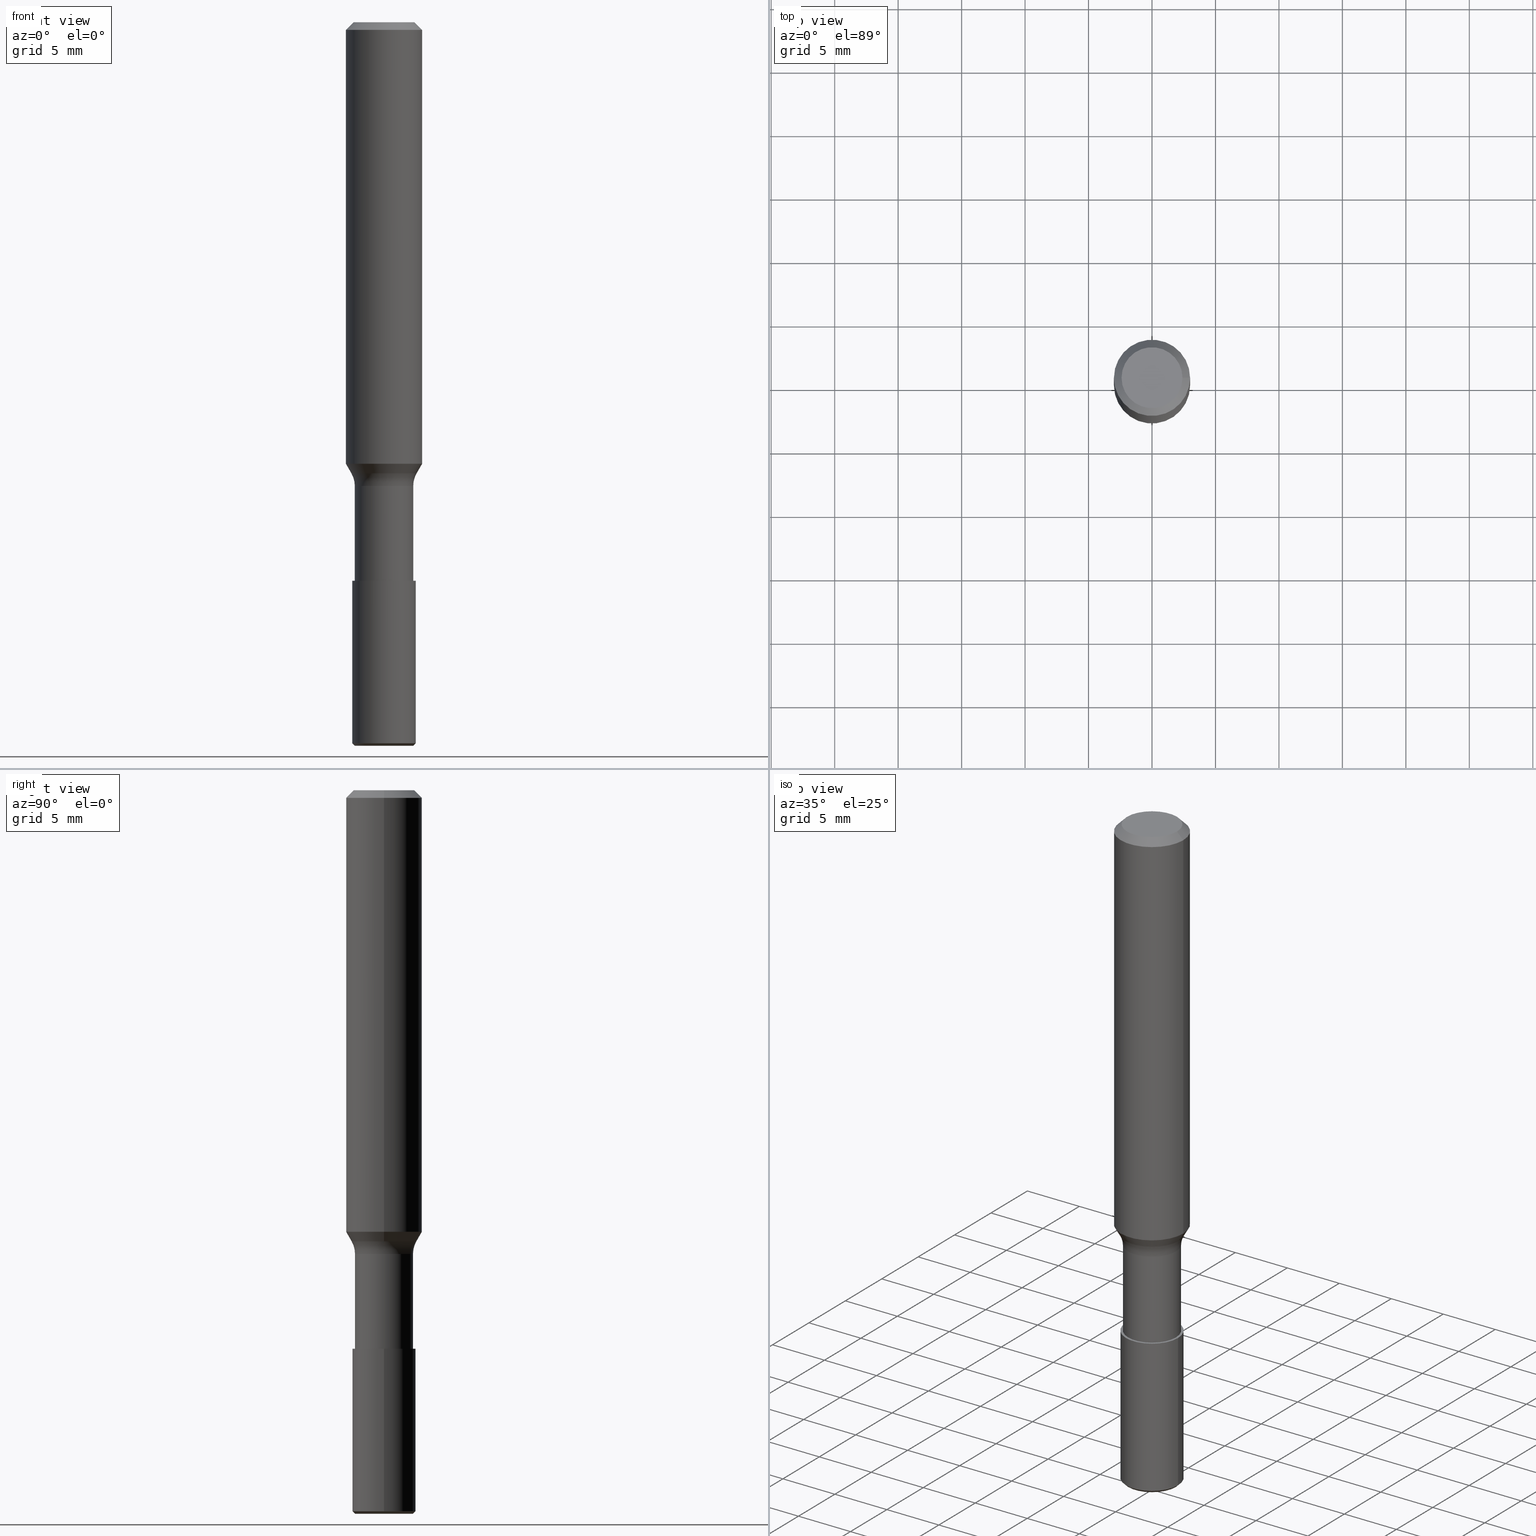
[diagram: canonical four-view strip — front | top / right | iso, engineering-drawing reading convention]
A machine part, canonical four-view strip (front | top / right | iso — engineering-drawing reading convention). The complete STEP part file that produces these views, byte-faithful:
ISO-10303-21;
HEADER;
FILE_DESCRIPTION (( 'STEP AP203' ),
    '1' );
FILE_NAME ('738.050.00.STEP',
    '2019-01-09T01:38:46',
    ( '' ),
    ( '' ),
    'SwSTEP 2.0',
    'SolidWorks 2019',
    '' );
FILE_SCHEMA (( 'CONFIG_CONTROL_DESIGN' ));
ENDSEC;

DATA;
#1 = DIRECTION ( 'NONE',  ( 6.982962677686266711E-15, 0.0000000000000000000, 1.000000000000000000 ) ) ;
#2 = EDGE_LOOP ( 'NONE', ( #88 ) ) ;
#3 = DIRECTION ( 'NONE',  ( 6.982962677686266711E-15, 0.0000000000000000000, 1.000000000000000000 ) ) ;
#4 = ORIENTED_EDGE ( 'NONE', *, *, #45, .T. ) ;
#5 = EDGE_LOOP ( 'NONE', ( #222 ) ) ;
#6 = DIRECTION ( 'NONE',  ( 0.0000000000000000000, 0.0000000000000000000, 1.000000000000000000 ) ) ;
#7 = DIRECTION ( 'NONE',  ( 6.982962677686266711E-15, 0.0000000000000000000, 1.000000000000000000 ) ) ;
#8 = ORIENTED_EDGE ( 'NONE', *, *, #212, .T. ) ;
#9 = FACE_OUTER_BOUND ( 'NONE', #209, .T. ) ;
#10 = CIRCLE ( 'NONE', #213, 2.500000000000015987 ) ;
#11 = ADVANCED_FACE ( 'NONE', ( #137 ), #39, .F. ) ;
#12 = DATE_AND_TIME ( #128, #15 ) ;
#13 = CALENDAR_DATE ( 2019, 9, 1 ) ;
#14 = DIRECTION ( 'NONE',  ( -8.961959400175080870E-15, 0.0000000000000000000, -1.000000000000000000 ) ) ;
#15 = LOCAL_TIME ( 2, 38, 46.00000000000000000, #149 ) ;
#16 = VERTEX_POINT ( 'NONE', #64 ) ;
#17 = APPROVAL_DATE_TIME ( #61, #254 ) ;
#18 = FACE_BOUND ( 'NONE', #110, .T. ) ;
#19 = ORIENTED_EDGE ( 'NONE', *, *, #212, .F. ) ;
#20 = CALENDAR_DATE ( 2019, 9, 1 ) ;
#21 = FACE_OUTER_BOUND ( 'NONE', #224, .T. ) ;
#22 = CIRCLE ( 'NONE', #56, 2.299999999999999822 ) ;
#23 = FACE_OUTER_BOUND ( 'NONE', #46, .T. ) ;
#24 = COORDINATED_UNIVERSAL_TIME_OFFSET ( 1, 0, .AHEAD. ) ;
#25 = CC_DESIGN_PERSON_AND_ORGANIZATION_ASSIGNMENT ( #129, #103, ( #226 ) ) ;
#26 = DIRECTION ( 'NONE',  ( -1.000000000000000000, 0.0000000000000000000, 8.326672684688590434E-15 ) ) ;
#27 = CARTESIAN_POINT ( 'NONE',  ( 2.399999999999998135, 0.0000000000000000000, -1.675911042644702748E-14 ) ) ;
#28 = CARTESIAN_POINT ( 'NONE',  ( -3.072503578181957858E-13, 0.0000000000000000000, -44.00000000000000711 ) ) ;
#29 = CARTESIAN_POINT ( 'NONE',  ( -3.072503578181957353E-13, 0.0000000000000000000, -44.00000000000000000 ) ) ;
#30 = PERSON_AND_ORGANIZATION ( #219, #142 ) ;
#31 = EDGE_LOOP ( 'NONE', ( #264 ) ) ;
#32 = MECHANICAL_CONTEXT ( 'NONE', #189, 'mechanical' ) ;
#33 = DIRECTION ( 'NONE',  ( -1.000000000000000000, 0.0000000000000000000, 6.033820786006285717E-15 ) ) ;
#34 = PERSON_AND_ORGANIZATION_ROLE ( 'design_supplier' ) ;
#35 = LOCAL_TIME ( 2, 38, 46.00000000000000000, #145 ) ;
#36 = LOCAL_TIME ( 2, 38, 46.00000000000000000, #24 ) ;
#37 = CARTESIAN_POINT ( 'NONE',  ( -2.300000000000431033, 0.0000000000000000000, -56.99999999999996447 ) ) ;
#38 = PRODUCT_DEFINITION ( 'UNKNOWN', '', #169, #97 ) ;
#39 = PLANE ( 'NONE',  #53 ) ;
#40 = DIRECTION ( 'NONE',  ( -1.000000000000000000, 0.0000000000000000000, 6.982962677686267499E-15 ) ) ;
#41 = CC_DESIGN_SECURITY_CLASSIFICATION ( #237, ( #169 ) ) ;
#42 = APPROVAL_DATE_TIME ( #12, #283 ) ;
#43 = EDGE_LOOP ( 'NONE', ( #48 ) ) ;
#44 = PERSON_AND_ORGANIZATION_ROLE ( 'creator' ) ;
#45 = EDGE_CURVE ( 'NONE', #155, #155, #10, .T. ) ;
#46 = EDGE_LOOP ( 'NONE', ( #147 ) ) ;
#47 = VERTEX_POINT ( 'NONE', #117 ) ;
#48 = ORIENTED_EDGE ( 'NONE', *, *, #271, .F. ) ;
#49 = CC_DESIGN_DATE_AND_TIME_ASSIGNMENT ( #113, #203, ( #38 ) ) ;
#50 = PERSON_AND_ORGANIZATION ( #219, #142 ) ;
#51 = AXIS2_PLACEMENT_3D ( 'NONE', #29, #207, #177 ) ;
#52 = APPROVAL_ROLE ( '' ) ;
#53 = AXIS2_PLACEMENT_3D ( 'NONE', #111, #86, #255 ) ;
#54 = VERTEX_POINT ( 'NONE', #144 ) ;
#55 = ADVANCED_FACE ( 'NONE', ( #21 ), #206, .T. ) ;
#56 = AXIS2_PLACEMENT_3D ( 'NONE', #102, #188, #33 ) ;
#57 = ORIENTED_EDGE ( 'NONE', *, *, #197, .F. ) ;
#58 = CIRCLE ( 'NONE', #167, 2.567949192431125294 ) ;
#59 = FACE_OUTER_BOUND ( 'NONE', #2, .T. ) ;
#60 = CC_DESIGN_PERSON_AND_ORGANIZATION_ASSIGNMENT ( #185, #34, ( #169 ) ) ;
#61 = DATE_AND_TIME ( #120, #196 ) ;
#62 = CARTESIAN_POINT ( 'NONE',  ( -4.219140501844019865E-13, 0.0000000000000000000, -56.79999999999998295 ) ) ;
#63 = CONICAL_SURFACE ( 'NONE', #228, 2.300000000000007372, 0.7853981633974786991 ) ;
#64 = CARTESIAN_POINT ( 'NONE',  ( 2.999999999999995559, 0.0000000000000000000, -0.6000000000000241807 ) ) ;
#65 =( LENGTH_UNIT ( ) NAMED_UNIT ( * ) SI_UNIT ( .MILLI., .METRE. ) );
#66 = EDGE_CURVE ( 'NONE', #54, #54, #105, .T. ) ;
#67 = FACE_BOUND ( 'NONE', #68, .T. ) ;
#68 = EDGE_LOOP ( 'NONE', ( #19 ) ) ;
#69 = DIRECTION ( 'NONE',  ( -1.000000000000000000, 0.0000000000000000000, 6.982962677686266711E-15 ) ) ;
#70 = PLANE ( 'NONE',  #238 ) ;
#71 = ADVANCED_FACE ( 'NONE', ( #263, #9 ), #182, .T. ) ;
#72 = CARTESIAN_POINT ( 'NONE',  ( -3.278450613974943489E-13, 0.0000000000000000000, -44.00000000000000000 ) ) ;
#73 = EDGE_LOOP ( 'NONE', ( #160 ) ) ;
#74 = APPROVAL_STATUS ( 'not_yet_approved' ) ;
#75 = APPROVAL_PERSON_ORGANIZATION ( #81, #254, #52 ) ;
#76 = DATE_AND_TIME ( #78, #35 ) ;
#77 = DIRECTION ( 'NONE',  ( 1.000000000000000000, 0.0000000000000000000, -6.982962677686266711E-15 ) ) ;
#78 = CALENDAR_DATE ( 2019, 9, 1 ) ;
#79 = ADVANCED_FACE ( 'NONE', ( #260, #156 ), #162, .T. ) ;
#80 = DIRECTION ( 'NONE',  ( 1.000000000000000000, 0.0000000000000000000, 0.0000000000000000000 ) ) ;
#81 = PERSON_AND_ORGANIZATION ( #219, #142 ) ;
#82 = AXIS2_PLACEMENT_3D ( 'NONE', #100, #6, #80 ) ;
#83 = APPROVAL_PERSON_ORGANIZATION ( #281, #262, #261 ) ;
#84 = CARTESIAN_POINT ( 'NONE',  ( 6.056509442254067229E-14, 0.0000000000000000000, 8.673266236417621400 ) ) ;
#85 = ADVANCED_FACE ( 'NONE', ( #269, #18 ), #215, .T. ) ;
#86 = DIRECTION ( 'NONE',  ( 7.373952358995601206E-15, -0.0000000000000000000, 1.000000000000000000 ) ) ;
#87 = CARTESIAN_POINT ( 'NONE',  ( -2.481458521395447458E-13, 0.0000000000000000000, -35.53589838486225005 ) ) ;
#88 = ORIENTED_EDGE ( 'NONE', *, *, #235, .F. ) ;
#89 = AXIS2_PLACEMENT_3D ( 'NONE', #242, #7, #164 ) ;
#90 = CC_DESIGN_PERSON_AND_ORGANIZATION_ASSIGNMENT ( #50, #159, ( #169 ) ) ;
#91 = AXIS2_PLACEMENT_3D ( 'NONE', #101, #1, #243 ) ;
#92 = UNCERTAINTY_MEASURE_WITH_UNIT (LENGTH_MEASURE( 1.000000000000000082E-05 ), #65, 'distance_accuracy_value', 'NONE');
#93 = MANIFOLD_SOLID_BREP ( 'K�rper in Z minus drehen[1]', #221 ) ;
#94 = SECURITY_CLASSIFICATION_LEVEL ( 'unclassified' ) ;
#95 = VERTEX_POINT ( 'NONE', #37 ) ;
#96 = CARTESIAN_POINT ( 'NONE',  ( -2.300000000000307132, 0.0000000000000000000, -43.99999999999998579 ) ) ;
#97 = DESIGN_CONTEXT ( 'detailed design', #131, 'design' ) ;
#98 = CONICAL_SURFACE ( 'NONE', #279, 2.399999999999998135, 0.7853981633974472798 ) ;
#99 = CC_DESIGN_PERSON_AND_ORGANIZATION_ASSIGNMENT ( #257, #44, ( #38 ) ) ;
#100 = CARTESIAN_POINT ( 'NONE',  ( 0.0000000000000000000, 0.0000000000000000000, 0.0000000000000000000 ) ) ;
#101 = CARTESIAN_POINT ( 'NONE',  ( -3.980288726281171773E-13, 0.0000000000000000000, -56.99999999999999289 ) ) ;
#102 = CARTESIAN_POINT ( 'NONE',  ( -2.551288148172312397E-13, 0.0000000000000000000, -36.53589838486227848 ) ) ;
#103 = PERSON_AND_ORGANIZATION_ROLE ( 'design_owner' ) ;
#104 = VERTEX_POINT ( 'NONE', #96 ) ;
#105 = CIRCLE ( 'NONE', #252, 2.500000000000025313 ) ;
#106 = CC_DESIGN_APPROVAL ( #262, ( #169 ) ) ;
#107 = DIRECTION ( 'NONE',  ( -1.000000000000000000, 0.0000000000000000000, 9.050731179009399782E-15 ) ) ;
#108 = EDGE_CURVE ( 'NONE', #132, #132, #22, .T. ) ;
#109 = DIRECTION ( 'NONE',  ( 7.373952358995601206E-15, -0.0000000000000000000, 1.000000000000000000 ) ) ;
#110 = EDGE_LOOP ( 'NONE', ( #233 ) ) ;
#111 = CARTESIAN_POINT ( 'NONE',  ( -4.237064420644371283E-13, 0.0000000000000000000, -56.99999999999999289 ) ) ;
#112 = EDGE_CURVE ( 'NONE', #104, #104, #118, .T. ) ;
#113 = DATE_AND_TIME ( #20, #36 ) ;
#114 =( NAMED_UNIT ( * ) SI_UNIT ( $, .STERADIAN. ) SOLID_ANGLE_UNIT ( ) );
#115 = CIRCLE ( 'NONE', #267, 2.300000000000007372 ) ;
#116 = EDGE_LOOP ( 'NONE', ( #57 ) ) ;
#117 = CARTESIAN_POINT ( 'NONE',  ( -2.567949192431373096, 0.0000000000000000000, -35.53589838486222874 ) ) ;
#118 = CIRCLE ( 'NONE', #51, 2.299999999999999822 ) ;
#119 = APPROVAL_PERSON_ORGANIZATION ( #30, #283, #163 ) ;
#120 = CALENDAR_DATE ( 2019, 9, 1 ) ;
#121 = AXIS2_PLACEMENT_3D ( 'NONE', #265, #268, #77 ) ;
#122 = LOCAL_TIME ( 2, 38, 46.00000000000000000, #165 ) ;
#123 = CARTESIAN_POINT ( 'NONE',  ( 2.499999999999688249, 0.0000000000000000000, -44.00000000000002132 ) ) ;
#124 = FACE_OUTER_BOUND ( 'NONE', #158, .T. ) ;
#125 = DIRECTION ( 'NONE',  ( -1.000000000000000000, 0.0000000000000000000, 8.106344850232081116E-15 ) ) ;
#126 = CIRCLE ( 'NONE', #135, 3.000000000000000000 ) ;
#127 =( GEOMETRIC_REPRESENTATION_CONTEXT ( 3 ) GLOBAL_UNCERTAINTY_ASSIGNED_CONTEXT ( ( #92 ) ) GLOBAL_UNIT_ASSIGNED_CONTEXT ( ( #65, #179, #114 ) ) REPRESENTATION_CONTEXT ( 'NONE', 'WORKASPACE' ) );
#128 = CALENDAR_DATE ( 2019, 9, 1 ) ;
#129 = PERSON_AND_ORGANIZATION ( #219, #142 ) ;
#130 = DIRECTION ( 'NONE',  ( 6.982962677686266711E-15, 0.0000000000000000000, 1.000000000000000000 ) ) ;
#131 = APPLICATION_CONTEXT ( 'configuration controlled 3d designs of mechanical parts and assemblies' ) ;
#132 = VERTEX_POINT ( 'NONE', #190 ) ;
#133 = ORIENTED_EDGE ( 'NONE', *, *, #112, .T. ) ;
#134 = CARTESIAN_POINT ( 'NONE',  ( -4.237064420644370273E-13, 0.0000000000000000000, -56.99999999999998579 ) ) ;
#135 = AXIS2_PLACEMENT_3D ( 'NONE', #253, #130, #173 ) ;
#136 = ADVANCED_FACE ( 'NONE', ( #223, #232 ), #98, .T. ) ;
#137 = FACE_OUTER_BOUND ( 'NONE', #178, .T. ) ;
#138 = CARTESIAN_POINT ( 'NONE',  ( -7.525997073249809467E-31, 0.0000000000000000000, -1.077765616204535070E-16 ) ) ;
#139 = AXIS2_PLACEMENT_3D ( 'NONE', #251, #170, #183 ) ;
#140 = DIRECTION ( 'NONE',  ( 6.982962677686266711E-15, 0.0000000000000000000, 1.000000000000000000 ) ) ;
#141 = CLOSED_SHELL ( 'NONE', ( #11, #240, #79, #55 ) ) ;
#142 = ORGANIZATION ( 'UNSPECIFIED', 'UNSPECIFIED', '' ) ;
#143 = EDGE_LOOP ( 'NONE', ( #205 ) ) ;
#144 = CARTESIAN_POINT ( 'NONE',  ( -2.500000000000447198, 0.0000000000000000000, -56.79999999999996163 ) ) ;
#145 = COORDINATED_UNIVERSAL_TIME_OFFSET ( 1, 0, .AHEAD. ) ;
#146 = ADVANCED_FACE ( 'NONE', ( #124 ), #70, .T. ) ;
#147 = ORIENTED_EDGE ( 'NONE', *, *, #66, .T. ) ;
#148 = DIRECTION ( 'NONE',  ( -6.982962677686266711E-15, 0.0000000000000000000, -1.000000000000000000 ) ) ;
#149 = COORDINATED_UNIVERSAL_TIME_OFFSET ( 1, 0, .AHEAD. ) ;
#150 = ADVANCED_FACE ( 'NONE', ( #168 ), #172, .T. ) ;
#151 = VERTEX_POINT ( 'NONE', #27 ) ;
#152 = FACE_OUTER_BOUND ( 'NONE', #246, .T. ) ;
#153 = DIRECTION ( 'NONE',  ( -6.982962677686266711E-15, 0.0000000000000000000, -1.000000000000000000 ) ) ;
#154 = CARTESIAN_POINT ( 'NONE',  ( 0.0000000000000000000, 0.0000000000000000000, 0.0000000000000000000 ) ) ;
#155 = VERTEX_POINT ( 'NONE', #123 ) ;
#156 = FACE_OUTER_BOUND ( 'NONE', #143, .T. ) ;
#157 = DIRECTION ( 'NONE',  ( -6.982962677686266711E-15, 0.0000000000000000000, -1.000000000000000000 ) ) ;
#158 = EDGE_LOOP ( 'NONE', ( #133 ) ) ;
#159 = PERSON_AND_ORGANIZATION_ROLE ( 'creator' ) ;
#160 = ORIENTED_EDGE ( 'NONE', *, *, #271, .T. ) ;
#161 = ADVANCED_FACE ( 'NONE', ( #59, #174 ), #176, .T. ) ;
#162 = CYLINDRICAL_SURFACE ( 'NONE', #244, 2.500000000000015987 ) ;
#163 = APPROVAL_ROLE ( '' ) ;
#164 = DIRECTION ( 'NONE',  ( 1.000000000000000000, 0.0000000000000000000, -6.982962677686266711E-15 ) ) ;
#165 = COORDINATED_UNIVERSAL_TIME_OFFSET ( 1, 0, .AHEAD. ) ;
#166 = CIRCLE ( 'NONE', #121, 2.399999999999998135 ) ;
#167 = AXIS2_PLACEMENT_3D ( 'NONE', #87, #157, #125 ) ;
#168 = FACE_OUTER_BOUND ( 'NONE', #277, .T. ) ;
#169 = PRODUCT_DEFINITION_FORMATION_WITH_SPECIFIED_SOURCE ( 'ANY', '', #226, .NOT_KNOWN. ) ;
#170 = DIRECTION ( 'NONE',  ( -6.982962677686266711E-15, 0.0000000000000000000, -1.000000000000000000 ) ) ;
#171 = EDGE_LOOP ( 'NONE', ( #231 ) ) ;
#172 = PLANE ( 'NONE',  #227 ) ;
#173 = DIRECTION ( 'NONE',  ( 1.000000000000000000, 0.0000000000000000000, -6.975033976323412122E-15 ) ) ;
#174 = FACE_OUTER_BOUND ( 'NONE', #73, .T. ) ;
#175 = APPROVAL_STATUS ( 'not_yet_approved' ) ;
#176 = CYLINDRICAL_SURFACE ( 'NONE', #91, 3.000000000000017319 ) ;
#177 = DIRECTION ( 'NONE',  ( -1.000000000000000000, 0.0000000000000000000, 6.033820786006285717E-15 ) ) ;
#178 = EDGE_LOOP ( 'NONE', ( #8 ) ) ;
#179 =( NAMED_UNIT ( * ) PLANE_ANGLE_UNIT ( ) SI_UNIT ( $, .RADIAN. ) );
#180 = APPROVAL_STATUS ( 'not_yet_approved' ) ;
#181 = PRODUCT_DEFINITION_SHAPE ( 'NONE', 'NONE',  #38 ) ;
#182 = CYLINDRICAL_SURFACE ( 'NONE', #202, 2.299999999999999822 ) ;
#183 = DIRECTION ( 'NONE',  ( -1.000000000000000000, 0.0000000000000000000, 6.982962677686266711E-15 ) ) ;
#184 = DATE_TIME_ROLE ( 'classification_date' ) ;
#185 = PERSON_AND_ORGANIZATION ( #219, #142 ) ;
#186 = CIRCLE ( 'NONE', #239, 3.000000000000017319 ) ;
#187 = CARTESIAN_POINT ( 'NONE',  ( -4.237064420644370273E-13, 0.0000000000000000000, -56.99999999999998579 ) ) ;
#188 = DIRECTION ( 'NONE',  ( -6.982962677686266711E-15, 0.0000000000000000000, -1.000000000000000000 ) ) ;
#189 = APPLICATION_CONTEXT ( 'configuration controlled 3d designs of mechanical parts and assemblies' ) ;
#190 = CARTESIAN_POINT ( 'NONE',  ( -2.300000000000255174, 0.0000000000000000000, -36.53589838486226427 ) ) ;
#191 = DIRECTION ( 'NONE',  ( 1.000000000000000000, 0.0000000000000000000, -6.938893903907188146E-15 ) ) ;
#192 = CARTESIAN_POINT ( 'NONE',  ( -2.481458521395447458E-13, 0.0000000000000000000, -35.53589838486225005 ) ) ;
#193 = PERSON_AND_ORGANIZATION_ROLE ( 'classification_officer' ) ;
#194 = DIRECTION ( 'NONE',  ( -1.000000000000000000, 0.0000000000000000000, 6.982962677686266711E-15 ) ) ;
#195 = APPROVAL_DATE_TIME ( #229, #262 ) ;
#196 = LOCAL_TIME ( 2, 38, 46.00000000000000000, #225 ) ;
#197 = EDGE_CURVE ( 'NONE', #151, #151, #166, .T. ) ;
#198 = ORIENTED_EDGE ( 'NONE', *, *, #197, .T. ) ;
#199 = DIRECTION ( 'NONE',  ( 8.961959400175080870E-15, 0.0000000000000000000, 1.000000000000000000 ) ) ;
#200 = CARTESIAN_POINT ( 'NONE',  ( -2.429202640951285895E-13, 0.0000000000000000000, -34.78756443470176407 ) ) ;
#201 = ORIENTED_EDGE ( 'NONE', *, *, #108, .T. ) ;
#202 = AXIS2_PLACEMENT_3D ( 'NONE', #208, #273, #40 ) ;
#203 = DATE_TIME_ROLE ( 'creation_date' ) ;
#204 = CARTESIAN_POINT ( 'NONE',  ( 2.999999999999774403, 0.0000000000000000000, -34.78756443470178539 ) ) ;
#205 = ORIENTED_EDGE ( 'NONE', *, *, #66, .F. ) ;
#206 = PLANE ( 'NONE',  #89 ) ;
#207 = DIRECTION ( 'NONE',  ( -6.982962677686266711E-15, 0.0000000000000000000, -1.000000000000000000 ) ) ;
#208 = CARTESIAN_POINT ( 'NONE',  ( 0.0000000000000000000, 0.0000000000000000000, 0.0000000000000000000 ) ) ;
#209 = EDGE_LOOP ( 'NONE', ( #217 ) ) ;
#210 = EDGE_LOOP ( 'NONE', ( #201 ) ) ;
#211 = ADVANCED_BREP_SHAPE_REPRESENTATION ( '738.050.00', ( #93, #274, #82 ), #127 ) ;
#212 = EDGE_CURVE ( 'NONE', #95, #95, #115, .T. ) ;
#213 = AXIS2_PLACEMENT_3D ( 'NONE', #72, #270, #247 ) ;
#214 = CC_DESIGN_DATE_AND_TIME_ASSIGNMENT ( #76, #184, ( #237 ) ) ;
#215 = CONICAL_SURFACE ( 'NONE', #248, 2.567949192431125294, 0.5235987755983003700 ) ;
#216 = PRODUCT_RELATED_PRODUCT_CATEGORY ( 'detail', '', ( #226 ) ) ;
#217 = ORIENTED_EDGE ( 'NONE', *, *, #112, .F. ) ;
#218 = DIRECTION ( 'NONE',  ( 6.982962677686266711E-15, 0.0000000000000000000, 1.000000000000000000 ) ) ;
#219 = PERSON ( 'UNSPECIFIED', 'UNSPECIFIED', 'UNSPECIFIED', ('UNSPECIFIED'), ('UNSPECIFIED'), ('UNSPECIFIED') ) ;
#220 = FACE_OUTER_BOUND ( 'NONE', #31, .T. ) ;
#221 = CLOSED_SHELL ( 'NONE', ( #150, #136, #161, #85, #258, #71, #146 ) ) ;
#222 = ORIENTED_EDGE ( 'NONE', *, *, #235, .T. ) ;
#223 = FACE_OUTER_BOUND ( 'NONE', #5, .T. ) ;
#224 = EDGE_LOOP ( 'NONE', ( #4 ) ) ;
#225 = COORDINATED_UNIVERSAL_TIME_OFFSET ( 1, 0, .AHEAD. ) ;
#226 = PRODUCT ( '738.050.00', '738.050.00', '', ( #32 ) ) ;
#227 = AXIS2_PLACEMENT_3D ( 'NONE', #138, #218, #278 ) ;
#228 = AXIS2_PLACEMENT_3D ( 'NONE', #134, #199, #282 ) ;
#229 = DATE_AND_TIME ( #13, #122 ) ;
#230 = PERSON_AND_ORGANIZATION ( #219, #142 ) ;
#231 = ORIENTED_EDGE ( 'NONE', *, *, #45, .F. ) ;
#232 = FACE_BOUND ( 'NONE', #116, .T. ) ;
#233 = ORIENTED_EDGE ( 'NONE', *, *, #276, .F. ) ;
#234 = DIRECTION ( 'NONE',  ( 1.000000000000000000, 0.0000000000000000000, -8.106344850232081116E-15 ) ) ;
#235 = EDGE_CURVE ( 'NONE', #16, #16, #126, .T. ) ;
#236 = APPLICATION_PROTOCOL_DEFINITION ( 'international standard', 'config_control_design', 1994, #189 ) ;
#237 = SECURITY_CLASSIFICATION ( '', '', #94 ) ;
#238 = AXIS2_PLACEMENT_3D ( 'NONE', #28, #153, #194 ) ;
#239 = AXIS2_PLACEMENT_3D ( 'NONE', #200, #140, #191 ) ;
#240 = ADVANCED_FACE ( 'NONE', ( #23, #67 ), #63, .T. ) ;
#241 = DIRECTION ( 'NONE',  ( 1.000000000000000000, 0.0000000000000000000, -7.632783294297902306E-15 ) ) ;
#242 = CARTESIAN_POINT ( 'NONE',  ( 2.499999999999686473, 0.0000000000000000000, -44.00000000000002132 ) ) ;
#243 = DIRECTION ( 'NONE',  ( 1.000000000000000000, 0.0000000000000000000, -6.938893903907188146E-15 ) ) ;
#244 = AXIS2_PLACEMENT_3D ( 'NONE', #84, #109, #241 ) ;
#245 = CC_DESIGN_APPROVAL ( #283, ( #237 ) ) ;
#246 = EDGE_LOOP ( 'NONE', ( #249 ) ) ;
#247 = DIRECTION ( 'NONE',  ( 1.000000000000000000, 0.0000000000000000000, -8.326672684688620411E-15 ) ) ;
#248 = AXIS2_PLACEMENT_3D ( 'NONE', #192, #3, #234 ) ;
#249 = ORIENTED_EDGE ( 'NONE', *, *, #108, .F. ) ;
#250 = DIRECTION ( 'NONE',  ( -8.961959400175080870E-15, 0.0000000000000000000, -1.000000000000000000 ) ) ;
#251 = CARTESIAN_POINT ( 'NONE',  ( -2.551288148172311892E-13, 0.0000000000000000000, -36.53589838486226427 ) ) ;
#252 = AXIS2_PLACEMENT_3D ( 'NONE', #62, #250, #26 ) ;
#253 = CARTESIAN_POINT ( 'NONE',  ( -4.189777606611783692E-15, 0.0000000000000000000, -0.6000000000000033085 ) ) ;
#254 = APPROVAL ( #180, 'UNSPECIFIED' ) ;
#255 = DIRECTION ( 'NONE',  ( 1.000000000000000000, 0.0000000000000000000, -7.373952358995601206E-15 ) ) ;
#256 = SHAPE_DEFINITION_REPRESENTATION ( #181, #211 ) ;
#257 = PERSON_AND_ORGANIZATION ( #219, #142 ) ;
#258 = ADVANCED_FACE ( 'NONE', ( #220, #152 ), #259, .F. ) ;
#259 = TOROIDAL_SURFACE ( 'NONE', #139, 4.299999999999999822, 2.000000000000005329 ) ;
#260 = FACE_OUTER_BOUND ( 'NONE', #171, .T. ) ;
#261 = APPROVAL_ROLE ( '' ) ;
#262 = APPROVAL ( #175, 'UNSPECIFIED' ) ;
#263 = FACE_OUTER_BOUND ( 'NONE', #210, .T. ) ;
#264 = ORIENTED_EDGE ( 'NONE', *, *, #276, .T. ) ;
#265 = CARTESIAN_POINT ( 'NONE',  ( 0.0000000000000000000, 0.0000000000000000000, 0.0000000000000000000 ) ) ;
#266 = CC_DESIGN_PERSON_AND_ORGANIZATION_ASSIGNMENT ( #230, #193, ( #237 ) ) ;
#267 = AXIS2_PLACEMENT_3D ( 'NONE', #187, #14, #107 ) ;
#268 = DIRECTION ( 'NONE',  ( 6.982962677686266711E-15, 0.0000000000000000000, 1.000000000000000000 ) ) ;
#269 = FACE_OUTER_BOUND ( 'NONE', #43, .T. ) ;
#270 = DIRECTION ( 'NONE',  ( 6.982962677686266711E-15, 0.0000000000000000000, 1.000000000000000000 ) ) ;
#271 = EDGE_CURVE ( 'NONE', #280, #280, #186, .T. ) ;
#272 = APPLICATION_PROTOCOL_DEFINITION ( 'international standard', 'config_control_design', 1994, #131 ) ;
#273 = DIRECTION ( 'NONE',  ( -6.982962677686266711E-15, 0.0000000000000000000, -1.000000000000000000 ) ) ;
#274 = MANIFOLD_SOLID_BREP ( 'K�rper in Z minus drehen[2]', #141 ) ;
#275 = CC_DESIGN_APPROVAL ( #254, ( #38 ) ) ;
#276 = EDGE_CURVE ( 'NONE', #47, #47, #58, .T. ) ;
#277 = EDGE_LOOP ( 'NONE', ( #198 ) ) ;
#278 = DIRECTION ( 'NONE',  ( 1.000000000000000000, 0.0000000000000000000, -6.982962677686266711E-15 ) ) ;
#279 = AXIS2_PLACEMENT_3D ( 'NONE', #154, #148, #69 ) ;
#280 = VERTEX_POINT ( 'NONE', #204 ) ;
#281 = PERSON_AND_ORGANIZATION ( #219, #142 ) ;
#282 = DIRECTION ( 'NONE',  ( 1.000000000000000000, 0.0000000000000000000, -9.050731179009399782E-15 ) ) ;
#283 = APPROVAL ( #74, 'UNSPECIFIED' ) ;
ENDSEC;
END-ISO-10303-21;
19850